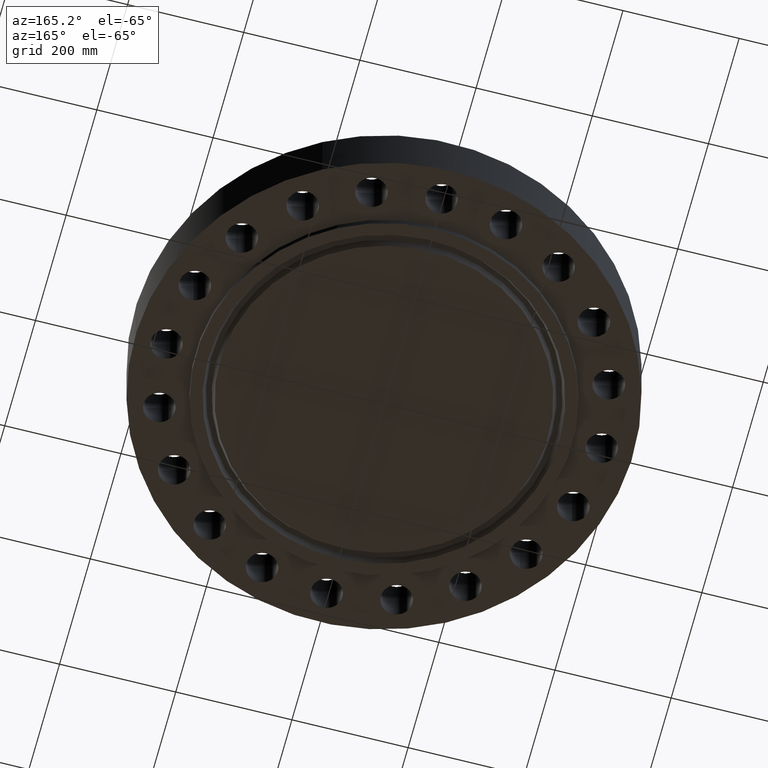
[diagram: clean part render]
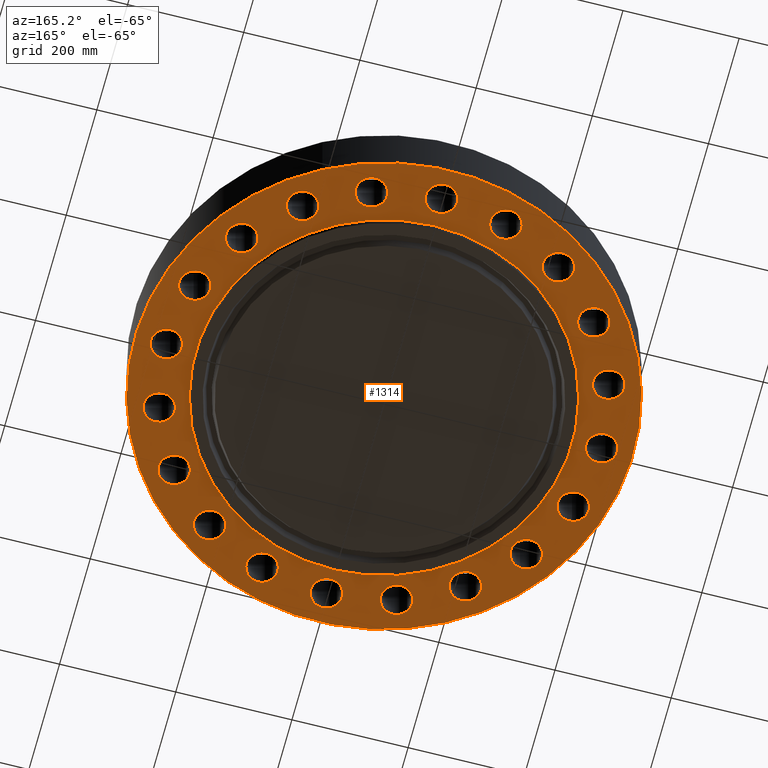
[diagram: same view with one face highlighted and labeled with its STEP entity id]
A machine part, auxiliary view. The second image highlights one B-rep face of the part: STEP entity #1314.
In plain terms, the highlighted planar face has unit normal (0, 0, -1).
Its self-contained STEP definition (entity closure, byte-faithful):
#112=AXIS2_PLACEMENT_3D('Circle Axis2P3D',#110,#111,$) ;
#138=AXIS2_PLACEMENT_3D('Circle Axis2P3D',#136,#137,$) ;
#169=AXIS2_PLACEMENT_3D('Circle Axis2P3D',#167,#168,$) ;
#195=AXIS2_PLACEMENT_3D('Circle Axis2P3D',#193,#194,$) ;
#226=AXIS2_PLACEMENT_3D('Circle Axis2P3D',#224,#225,$) ;
#252=AXIS2_PLACEMENT_3D('Circle Axis2P3D',#250,#251,$) ;
#283=AXIS2_PLACEMENT_3D('Circle Axis2P3D',#281,#282,$) ;
#309=AXIS2_PLACEMENT_3D('Circle Axis2P3D',#307,#308,$) ;
#340=AXIS2_PLACEMENT_3D('Circle Axis2P3D',#338,#339,$) ;
#366=AXIS2_PLACEMENT_3D('Circle Axis2P3D',#364,#365,$) ;
#397=AXIS2_PLACEMENT_3D('Circle Axis2P3D',#395,#396,$) ;
#423=AXIS2_PLACEMENT_3D('Circle Axis2P3D',#421,#422,$) ;
#454=AXIS2_PLACEMENT_3D('Circle Axis2P3D',#452,#453,$) ;
#480=AXIS2_PLACEMENT_3D('Circle Axis2P3D',#478,#479,$) ;
#511=AXIS2_PLACEMENT_3D('Circle Axis2P3D',#509,#510,$) ;
#537=AXIS2_PLACEMENT_3D('Circle Axis2P3D',#535,#536,$) ;
#568=AXIS2_PLACEMENT_3D('Circle Axis2P3D',#566,#567,$) ;
#594=AXIS2_PLACEMENT_3D('Circle Axis2P3D',#592,#593,$) ;
#625=AXIS2_PLACEMENT_3D('Circle Axis2P3D',#623,#624,$) ;
#651=AXIS2_PLACEMENT_3D('Circle Axis2P3D',#649,#650,$) ;
#682=AXIS2_PLACEMENT_3D('Circle Axis2P3D',#680,#681,$) ;
#708=AXIS2_PLACEMENT_3D('Circle Axis2P3D',#706,#707,$) ;
#739=AXIS2_PLACEMENT_3D('Circle Axis2P3D',#737,#738,$) ;
#765=AXIS2_PLACEMENT_3D('Circle Axis2P3D',#763,#764,$) ;
#796=AXIS2_PLACEMENT_3D('Circle Axis2P3D',#794,#795,$) ;
#822=AXIS2_PLACEMENT_3D('Circle Axis2P3D',#820,#821,$) ;
#853=AXIS2_PLACEMENT_3D('Circle Axis2P3D',#851,#852,$) ;
#879=AXIS2_PLACEMENT_3D('Circle Axis2P3D',#877,#878,$) ;
#910=AXIS2_PLACEMENT_3D('Circle Axis2P3D',#908,#909,$) ;
#936=AXIS2_PLACEMENT_3D('Circle Axis2P3D',#934,#935,$) ;
#967=AXIS2_PLACEMENT_3D('Circle Axis2P3D',#965,#966,$) ;
#993=AXIS2_PLACEMENT_3D('Circle Axis2P3D',#991,#992,$) ;
#1024=AXIS2_PLACEMENT_3D('Circle Axis2P3D',#1022,#1023,$) ;
#1050=AXIS2_PLACEMENT_3D('Circle Axis2P3D',#1048,#1049,$) ;
#1081=AXIS2_PLACEMENT_3D('Circle Axis2P3D',#1079,#1080,$) ;
#1107=AXIS2_PLACEMENT_3D('Circle Axis2P3D',#1105,#1106,$) ;
#1138=AXIS2_PLACEMENT_3D('Circle Axis2P3D',#1136,#1137,$) ;
#1164=AXIS2_PLACEMENT_3D('Circle Axis2P3D',#1162,#1163,$) ;
#1182=AXIS2_PLACEMENT_3D('Plane Axis2P3D',#1179,#1180,#1181) ;
#1186=AXIS2_PLACEMENT_3D('Circle Axis2P3D',#1184,#1185,$) ;
#1195=AXIS2_PLACEMENT_3D('Circle Axis2P3D',#1193,#1194,$) ;
#1204=AXIS2_PLACEMENT_3D('Circle Axis2P3D',#1202,#1203,$) ;
#1213=AXIS2_PLACEMENT_3D('Circle Axis2P3D',#1211,#1212,$) ;
#1222=AXIS2_PLACEMENT_3D('Circle Axis2P3D',#1220,#1221,$) ;
#1231=AXIS2_PLACEMENT_3D('Circle Axis2P3D',#1229,#1230,$) ;
#105=CARTESIAN_POINT('Vertex',(5.28910184054,13.2536702412,-5.59482469102E-016)) ;
#110=CARTESIAN_POINT('Axis2P3D Location',(4.55800066705,14.0280836154,0.)) ;
#114=CARTESIAN_POINT('Vertex',(3.82689949356,14.8024969896,0.)) ;
#136=CARTESIAN_POINT('Axis2P3D Location',(4.55800066705,14.0280836154,0.)) ;
#162=CARTESIAN_POINT('Vertex',(-0.934625428417,-14.2394118014,-5.59482469102E-016)) ;
#167=CARTESIAN_POINT('Axis2P3D Location',(8.35666987406E-015,-14.7500000001,0.)) ;
#171=CARTESIAN_POINT('Vertex',(0.934625428417,-15.2605881987,0.)) ;
#193=CARTESIAN_POINT('Axis2P3D Location',(8.35666987406E-015,-14.7500000001,0.)) ;
#219=CARTESIAN_POINT('Vertex',(-3.51133863256,13.8313005227,-3.35689481461E-015)) ;
#224=CARTESIAN_POINT('Axis2P3D Location',(-4.55800066705,14.0280836154,-3.35689481461E-015)) ;
#228=CARTESIAN_POINT('Vertex',(-5.60466270154,14.2248667081,0.)) ;
#250=CARTESIAN_POINT('Axis2P3D Location',(-4.55800066705,14.0280836154,-3.35689481461E-015)) ;
#276=CARTESIAN_POINT('Vertex',(3.51133863256,-13.8313005227,-5.59482469102E-016)) ;
#281=CARTESIAN_POINT('Axis2P3D Location',(4.55800066705,-14.0280836154,0.)) ;
#285=CARTESIAN_POINT('Vertex',(5.60466270154,-14.2248667081,0.)) ;
#307=CARTESIAN_POINT('Axis2P3D Location',(4.55800066705,-14.0280836154,0.)) ;
#333=CARTESIAN_POINT('Vertex',(-7.61358840324,12.0692851805,-5.59482469102E-016)) ;
#338=CARTESIAN_POINT('Axis2P3D Location',(-8.66983247135,11.9330006671,0.)) ;
#342=CARTESIAN_POINT('Vertex',(-9.72607653945,11.7967161536,0.)) ;
#364=CARTESIAN_POINT('Axis2P3D Location',(-8.66983247135,11.9330006671,0.)) ;
#390=CARTESIAN_POINT('Vertex',(7.61358840324,-12.0692851805,-5.59482469102E-016)) ;
#395=CARTESIAN_POINT('Axis2P3D Location',(8.66983247135,-11.9330006671,0.)) ;
#399=CARTESIAN_POINT('Vertex',(9.72607653945,-11.7967161536,0.)) ;
#421=CARTESIAN_POINT('Axis2P3D Location',(8.66983247135,-11.9330006671,0.)) ;
#447=CARTESIAN_POINT('Vertex',(-10.970567094,9.12584411317,-5.59482469102E-016)) ;
#452=CARTESIAN_POINT('Axis2P3D Location',(-11.9330006671,8.66983247135,0.)) ;
#456=CARTESIAN_POINT('Vertex',(-12.8954342401,8.21382082953,0.)) ;
#478=CARTESIAN_POINT('Axis2P3D Location',(-11.9330006671,8.66983247135,0.)) ;
#504=CARTESIAN_POINT('Vertex',(10.970567094,-9.12584411317,-5.59482469102E-016)) ;
#509=CARTESIAN_POINT('Axis2P3D Location',(11.9330006671,-8.66983247135,0.)) ;
#513=CARTESIAN_POINT('Vertex',(12.8954342401,-8.21382082953,0.)) ;
#535=CARTESIAN_POINT('Axis2P3D Location',(11.9330006671,-8.66983247135,0.)) ;
#561=CARTESIAN_POINT('Vertex',(-13.2536702412,5.28910184054,-3.35689481461E-015)) ;
#566=CARTESIAN_POINT('Axis2P3D Location',(-14.0280836154,4.55800066705,-3.35689481461E-015)) ;
#570=CARTESIAN_POINT('Vertex',(-14.8024969896,3.82689949356,0.)) ;
#592=CARTESIAN_POINT('Axis2P3D Location',(-14.0280836154,4.55800066705,-3.35689481461E-015)) ;
#618=CARTESIAN_POINT('Vertex',(13.2536702412,-5.28910184054,-5.59482469102E-016)) ;
#623=CARTESIAN_POINT('Axis2P3D Location',(14.0280836154,-4.55800066705,0.)) ;
#627=CARTESIAN_POINT('Vertex',(14.8024969896,-3.82689949356,0.)) ;
#649=CARTESIAN_POINT('Axis2P3D Location',(14.0280836154,-4.55800066705,0.)) ;
#675=CARTESIAN_POINT('Vertex',(-14.2394118014,0.934625428417,-5.59482469102E-016)) ;
#680=CARTESIAN_POINT('Axis2P3D Location',(-14.7500000001,-1.58101627338E-014,0.)) ;
#684=CARTESIAN_POINT('Vertex',(-15.2605881987,-0.934625428417,0.)) ;
#706=CARTESIAN_POINT('Axis2P3D Location',(-14.7500000001,-1.58101627338E-014,0.)) ;
#732=CARTESIAN_POINT('Vertex',(14.2394118014,-0.934625428417,-5.59482469102E-016)) ;
#737=CARTESIAN_POINT('Axis2P3D Location',(14.7500000001,4.17833493703E-015,0.)) ;
#741=CARTESIAN_POINT('Vertex',(15.2605881987,0.934625428417,0.)) ;
#763=CARTESIAN_POINT('Axis2P3D Location',(14.7500000001,4.17833493703E-015,0.)) ;
#789=CARTESIAN_POINT('Vertex',(-13.8313005227,-3.51133863256,-3.35689481461E-015)) ;
#794=CARTESIAN_POINT('Axis2P3D Location',(-14.0280836154,-4.55800066705,-3.35689481461E-015)) ;
#798=CARTESIAN_POINT('Vertex',(-14.2248667081,-5.60466270154,0.)) ;
#820=CARTESIAN_POINT('Axis2P3D Location',(-14.0280836154,-4.55800066705,-3.35689481461E-015)) ;
#846=CARTESIAN_POINT('Vertex',(13.8313005227,3.51133863256,-5.59482469102E-016)) ;
#851=CARTESIAN_POINT('Axis2P3D Location',(14.0280836154,4.55800066705,0.)) ;
#855=CARTESIAN_POINT('Vertex',(14.2248667081,5.60466270154,0.)) ;
#877=CARTESIAN_POINT('Axis2P3D Location',(14.0280836154,4.55800066705,0.)) ;
#903=CARTESIAN_POINT('Vertex',(-12.0692851805,-7.61358840324,-5.59482469102E-016)) ;
#908=CARTESIAN_POINT('Axis2P3D Location',(-11.9330006671,-8.66983247135,0.)) ;
#912=CARTESIAN_POINT('Vertex',(-11.7967161536,-9.72607653945,0.)) ;
#934=CARTESIAN_POINT('Axis2P3D Location',(-11.9330006671,-8.66983247135,0.)) ;
#960=CARTESIAN_POINT('Vertex',(12.0692851805,7.61358840324,-5.59482469102E-016)) ;
#965=CARTESIAN_POINT('Axis2P3D Location',(11.9330006671,8.66983247135,0.)) ;
#969=CARTESIAN_POINT('Vertex',(11.7967161536,9.72607653945,0.)) ;
#991=CARTESIAN_POINT('Axis2P3D Location',(11.9330006671,8.66983247135,0.)) ;
#1017=CARTESIAN_POINT('Vertex',(-9.12584411317,-10.970567094,-3.35689481461E-015)) ;
#1022=CARTESIAN_POINT('Axis2P3D Location',(-8.66983247135,-11.9330006671,-3.35689481461E-015)) ;
#1026=CARTESIAN_POINT('Vertex',(-8.21382082953,-12.8954342401,0.)) ;
#1048=CARTESIAN_POINT('Axis2P3D Location',(-8.66983247135,-11.9330006671,-3.35689481461E-015)) ;
#1074=CARTESIAN_POINT('Vertex',(9.12584411317,10.970567094,-3.35689481461E-015)) ;
#1079=CARTESIAN_POINT('Axis2P3D Location',(8.66983247135,11.9330006671,-3.35689481461E-015)) ;
#1083=CARTESIAN_POINT('Vertex',(8.21382082953,12.8954342401,0.)) ;
#1105=CARTESIAN_POINT('Axis2P3D Location',(8.66983247135,11.9330006671,-3.35689481461E-015)) ;
#1131=CARTESIAN_POINT('Vertex',(-5.28910184054,-13.2536702412,-5.59482469102E-016)) ;
#1136=CARTESIAN_POINT('Axis2P3D Location',(-4.55800066705,-14.0280836154,0.)) ;
#1140=CARTESIAN_POINT('Vertex',(-3.82689949356,-14.8024969896,0.)) ;
#1162=CARTESIAN_POINT('Axis2P3D Location',(-4.55800066705,-14.0280836154,0.)) ;
#1179=CARTESIAN_POINT('Axis2P3D Location',(0.,12.7500000001,0.)) ;
#1184=CARTESIAN_POINT('Axis2P3D Location',(0.,0.,0.)) ;
#1188=CARTESIAN_POINT('Vertex',(-8.09030596398,-14.809205732,1.95818864186E-015)) ;
#1190=CARTESIAN_POINT('Vertex',(8.09030596398,14.809205732,1.95818864186E-015)) ;
#1193=CARTESIAN_POINT('Axis2P3D Location',(0.,0.,0.)) ;
#1202=CARTESIAN_POINT('Axis2P3D Location',(-3.84644197508E-016,14.7500000001,0.)) ;
#1206=CARTESIAN_POINT('Vertex',(0.934625428417,14.2394118014,-5.59482469102E-016)) ;
#1208=CARTESIAN_POINT('Vertex',(-0.934625428417,15.2605881987,-5.59482469102E-016)) ;
#1211=CARTESIAN_POINT('Axis2P3D Location',(4.19611851827E-016,14.7500000001,0.)) ;
#1220=CARTESIAN_POINT('Axis2P3D Location',(0.,0.,0.)) ;
#1224=CARTESIAN_POINT('Vertex',(6.11267561723,11.1891776641,1.39870617276E-015)) ;
#1226=CARTESIAN_POINT('Vertex',(-6.11267561723,-11.1891776641,1.39870617276E-015)) ;
#1229=CARTESIAN_POINT('Axis2P3D Location',(0.,0.,0.)) ;
#111=DIRECTION('Axis2P3D Direction',(0.,-0.,-0.0393700787402)) ;
#137=DIRECTION('Axis2P3D Direction',(0.,-0.,-0.0393700787402)) ;
#168=DIRECTION('Axis2P3D Direction',(-0.,0.,-0.0393700787402)) ;
#194=DIRECTION('Axis2P3D Direction',(-0.,0.,-0.0393700787402)) ;
#225=DIRECTION('Axis2P3D Direction',(0.,0.,-0.0393700787402)) ;
#251=DIRECTION('Axis2P3D Direction',(0.,0.,-0.0393700787402)) ;
#282=DIRECTION('Axis2P3D Direction',(-0.,0.,-0.0393700787402)) ;
#308=DIRECTION('Axis2P3D Direction',(-0.,0.,-0.0393700787402)) ;
#339=DIRECTION('Axis2P3D Direction',(0.,0.,-0.0393700787402)) ;
#365=DIRECTION('Axis2P3D Direction',(0.,0.,-0.0393700787402)) ;
#396=DIRECTION('Axis2P3D Direction',(-0.,0.,-0.0393700787402)) ;
#422=DIRECTION('Axis2P3D Direction',(-0.,0.,-0.0393700787402)) ;
#453=DIRECTION('Axis2P3D Direction',(0.,0.,-0.0393700787402)) ;
#479=DIRECTION('Axis2P3D Direction',(0.,0.,-0.0393700787402)) ;
#510=DIRECTION('Axis2P3D Direction',(-0.,0.,-0.0393700787402)) ;
#536=DIRECTION('Axis2P3D Direction',(-0.,0.,-0.0393700787402)) ;
#567=DIRECTION('Axis2P3D Direction',(0.,0.,-0.0393700787402)) ;
#593=DIRECTION('Axis2P3D Direction',(0.,0.,-0.0393700787402)) ;
#624=DIRECTION('Axis2P3D Direction',(-0.,0.,-0.0393700787402)) ;
#650=DIRECTION('Axis2P3D Direction',(-0.,0.,-0.0393700787402)) ;
#681=DIRECTION('Axis2P3D Direction',(0.,0.,-0.0393700787402)) ;
#707=DIRECTION('Axis2P3D Direction',(0.,0.,-0.0393700787402)) ;
#738=DIRECTION('Axis2P3D Direction',(0.,-0.,-0.0393700787402)) ;
#764=DIRECTION('Axis2P3D Direction',(0.,-0.,-0.0393700787402)) ;
#795=DIRECTION('Axis2P3D Direction',(0.,0.,-0.0393700787402)) ;
#821=DIRECTION('Axis2P3D Direction',(0.,0.,-0.0393700787402)) ;
#852=DIRECTION('Axis2P3D Direction',(0.,-0.,-0.0393700787402)) ;
#878=DIRECTION('Axis2P3D Direction',(0.,-0.,-0.0393700787402)) ;
#909=DIRECTION('Axis2P3D Direction',(0.,0.,-0.0393700787402)) ;
#935=DIRECTION('Axis2P3D Direction',(0.,0.,-0.0393700787402)) ;
#966=DIRECTION('Axis2P3D Direction',(0.,-0.,-0.0393700787402)) ;
#992=DIRECTION('Axis2P3D Direction',(0.,-0.,-0.0393700787402)) ;
#1023=DIRECTION('Axis2P3D Direction',(0.,0.,-0.0393700787402)) ;
#1049=DIRECTION('Axis2P3D Direction',(0.,0.,-0.0393700787402)) ;
#1080=DIRECTION('Axis2P3D Direction',(0.,-0.,-0.0393700787402)) ;
#1106=DIRECTION('Axis2P3D Direction',(0.,-0.,-0.0393700787402)) ;
#1137=DIRECTION('Axis2P3D Direction',(0.,0.,-0.0393700787402)) ;
#1163=DIRECTION('Axis2P3D Direction',(0.,0.,-0.0393700787402)) ;
#1180=DIRECTION('Axis2P3D Direction',(0.,0.,-0.0393700787402)) ;
#1181=DIRECTION('Axis2P3D XDirection',(0.0393700787402,0.,0.)) ;
#1185=DIRECTION('Axis2P3D Direction',(0.,0.,-0.0393700787402)) ;
#1194=DIRECTION('Axis2P3D Direction',(0.,0.,-0.0393700787402)) ;
#1203=DIRECTION('Axis2P3D Direction',(0.,0.,-0.0393700787402)) ;
#1212=DIRECTION('Axis2P3D Direction',(0.,0.,-0.0393700787402)) ;
#1221=DIRECTION('Axis2P3D Direction',(0.,0.,-0.0393700787402)) ;
#1230=DIRECTION('Axis2P3D Direction',(0.,0.,-0.0393700787402)) ;
#1199=ORIENTED_EDGE('',*,*,#1192,.T.) ;
#1200=ORIENTED_EDGE('',*,*,#1197,.T.) ;
#1217=ORIENTED_EDGE('',*,*,#1210,.F.) ;
#1218=ORIENTED_EDGE('',*,*,#1215,.F.) ;
#1235=ORIENTED_EDGE('',*,*,#1228,.F.) ;
#1236=ORIENTED_EDGE('',*,*,#1233,.F.) ;
#1239=ORIENTED_EDGE('',*,*,#140,.F.) ;
#1240=ORIENTED_EDGE('',*,*,#116,.F.) ;
#1243=ORIENTED_EDGE('',*,*,#1109,.F.) ;
#1244=ORIENTED_EDGE('',*,*,#1085,.F.) ;
#1247=ORIENTED_EDGE('',*,*,#995,.F.) ;
#1248=ORIENTED_EDGE('',*,*,#971,.F.) ;
#1251=ORIENTED_EDGE('',*,*,#881,.F.) ;
#1252=ORIENTED_EDGE('',*,*,#857,.F.) ;
#1255=ORIENTED_EDGE('',*,*,#767,.F.) ;
#1256=ORIENTED_EDGE('',*,*,#743,.F.) ;
#1259=ORIENTED_EDGE('',*,*,#653,.F.) ;
#1260=ORIENTED_EDGE('',*,*,#629,.F.) ;
#1263=ORIENTED_EDGE('',*,*,#539,.F.) ;
#1264=ORIENTED_EDGE('',*,*,#515,.F.) ;
#1267=ORIENTED_EDGE('',*,*,#425,.F.) ;
#1268=ORIENTED_EDGE('',*,*,#401,.F.) ;
#1271=ORIENTED_EDGE('',*,*,#311,.F.) ;
#1272=ORIENTED_EDGE('',*,*,#287,.F.) ;
#1275=ORIENTED_EDGE('',*,*,#197,.F.) ;
#1276=ORIENTED_EDGE('',*,*,#173,.F.) ;
#1279=ORIENTED_EDGE('',*,*,#1166,.F.) ;
#1280=ORIENTED_EDGE('',*,*,#1142,.F.) ;
#1283=ORIENTED_EDGE('',*,*,#1052,.F.) ;
#1284=ORIENTED_EDGE('',*,*,#1028,.F.) ;
#1287=ORIENTED_EDGE('',*,*,#938,.F.) ;
#1288=ORIENTED_EDGE('',*,*,#914,.F.) ;
#1291=ORIENTED_EDGE('',*,*,#824,.F.) ;
#1292=ORIENTED_EDGE('',*,*,#800,.F.) ;
#1295=ORIENTED_EDGE('',*,*,#710,.F.) ;
#1296=ORIENTED_EDGE('',*,*,#686,.F.) ;
#1299=ORIENTED_EDGE('',*,*,#596,.F.) ;
#1300=ORIENTED_EDGE('',*,*,#572,.F.) ;
#1303=ORIENTED_EDGE('',*,*,#482,.F.) ;
#1304=ORIENTED_EDGE('',*,*,#458,.F.) ;
#1307=ORIENTED_EDGE('',*,*,#368,.F.) ;
#1308=ORIENTED_EDGE('',*,*,#344,.F.) ;
#1311=ORIENTED_EDGE('',*,*,#254,.F.) ;
#1312=ORIENTED_EDGE('',*,*,#230,.F.) ;
#1219=FACE_BOUND('',#1216,.T.) ;
#1237=FACE_BOUND('',#1234,.T.) ;
#1241=FACE_BOUND('',#1238,.T.) ;
#1245=FACE_BOUND('',#1242,.T.) ;
#1249=FACE_BOUND('',#1246,.T.) ;
#1253=FACE_BOUND('',#1250,.T.) ;
#1257=FACE_BOUND('',#1254,.T.) ;
#1261=FACE_BOUND('',#1258,.T.) ;
#1265=FACE_BOUND('',#1262,.T.) ;
#1269=FACE_BOUND('',#1266,.T.) ;
#1273=FACE_BOUND('',#1270,.T.) ;
#1277=FACE_BOUND('',#1274,.T.) ;
#1281=FACE_BOUND('',#1278,.T.) ;
#1285=FACE_BOUND('',#1282,.T.) ;
#1289=FACE_BOUND('',#1286,.T.) ;
#1293=FACE_BOUND('',#1290,.T.) ;
#1297=FACE_BOUND('',#1294,.T.) ;
#1301=FACE_BOUND('',#1298,.T.) ;
#1305=FACE_BOUND('',#1302,.T.) ;
#1309=FACE_BOUND('',#1306,.T.) ;
#1313=FACE_BOUND('',#1310,.T.) ;
#1314=ADVANCED_FACE('PartBody',(#1201,#1219,#1237,#1241,#1245,#1249,#1253,#1257,#1261,#1265,#1269,#1273,#1277,#1281,#1285,#1289,#1293,#1297,#1301,#1305,#1309,#1313),#1183,.T.) ;
#113=CIRCLE('generated circle',#112,1.065) ;
#139=CIRCLE('generated circle',#138,1.065) ;
#170=CIRCLE('generated circle',#169,1.065) ;
#196=CIRCLE('generated circle',#195,1.065) ;
#227=CIRCLE('generated circle',#226,1.065) ;
#253=CIRCLE('generated circle',#252,1.065) ;
#284=CIRCLE('generated circle',#283,1.065) ;
#310=CIRCLE('generated circle',#309,1.065) ;
#341=CIRCLE('generated circle',#340,1.065) ;
#367=CIRCLE('generated circle',#366,1.065) ;
#398=CIRCLE('generated circle',#397,1.065) ;
#424=CIRCLE('generated circle',#423,1.065) ;
#455=CIRCLE('generated circle',#454,1.065) ;
#481=CIRCLE('generated circle',#480,1.065) ;
#512=CIRCLE('generated circle',#511,1.065) ;
#538=CIRCLE('generated circle',#537,1.065) ;
#569=CIRCLE('generated circle',#568,1.065) ;
#595=CIRCLE('generated circle',#594,1.065) ;
#626=CIRCLE('generated circle',#625,1.065) ;
#652=CIRCLE('generated circle',#651,1.065) ;
#683=CIRCLE('generated circle',#682,1.065) ;
#709=CIRCLE('generated circle',#708,1.065) ;
#740=CIRCLE('generated circle',#739,1.065) ;
#766=CIRCLE('generated circle',#765,1.065) ;
#797=CIRCLE('generated circle',#796,1.065) ;
#823=CIRCLE('generated circle',#822,1.065) ;
#854=CIRCLE('generated circle',#853,1.065) ;
#880=CIRCLE('generated circle',#879,1.065) ;
#911=CIRCLE('generated circle',#910,1.065) ;
#937=CIRCLE('generated circle',#936,1.065) ;
#968=CIRCLE('generated circle',#967,1.065) ;
#994=CIRCLE('generated circle',#993,1.065) ;
#1025=CIRCLE('generated circle',#1024,1.065) ;
#1051=CIRCLE('generated circle',#1050,1.065) ;
#1082=CIRCLE('generated circle',#1081,1.065) ;
#1108=CIRCLE('generated circle',#1107,1.065) ;
#1139=CIRCLE('generated circle',#1138,1.065) ;
#1165=CIRCLE('generated circle',#1164,1.065) ;
#1187=CIRCLE('generated circle',#1186,16.8750000001) ;
#1196=CIRCLE('generated circle',#1195,16.8750000001) ;
#1205=CIRCLE('generated circle',#1204,1.065) ;
#1214=CIRCLE('generated circle',#1213,1.065) ;
#1223=CIRCLE('generated circle',#1222,12.7500000001) ;
#1232=CIRCLE('generated circle',#1231,12.7500000001) ;
#116=EDGE_CURVE('',#106,#115,#113,.T.) ;
#140=EDGE_CURVE('',#115,#106,#139,.T.) ;
#173=EDGE_CURVE('',#163,#172,#170,.T.) ;
#197=EDGE_CURVE('',#172,#163,#196,.T.) ;
#230=EDGE_CURVE('',#220,#229,#227,.T.) ;
#254=EDGE_CURVE('',#229,#220,#253,.T.) ;
#287=EDGE_CURVE('',#277,#286,#284,.T.) ;
#311=EDGE_CURVE('',#286,#277,#310,.T.) ;
#344=EDGE_CURVE('',#334,#343,#341,.T.) ;
#368=EDGE_CURVE('',#343,#334,#367,.T.) ;
#401=EDGE_CURVE('',#391,#400,#398,.T.) ;
#425=EDGE_CURVE('',#400,#391,#424,.T.) ;
#458=EDGE_CURVE('',#448,#457,#455,.T.) ;
#482=EDGE_CURVE('',#457,#448,#481,.T.) ;
#515=EDGE_CURVE('',#505,#514,#512,.T.) ;
#539=EDGE_CURVE('',#514,#505,#538,.T.) ;
#572=EDGE_CURVE('',#562,#571,#569,.T.) ;
#596=EDGE_CURVE('',#571,#562,#595,.T.) ;
#629=EDGE_CURVE('',#619,#628,#626,.T.) ;
#653=EDGE_CURVE('',#628,#619,#652,.T.) ;
#686=EDGE_CURVE('',#676,#685,#683,.T.) ;
#710=EDGE_CURVE('',#685,#676,#709,.T.) ;
#743=EDGE_CURVE('',#733,#742,#740,.T.) ;
#767=EDGE_CURVE('',#742,#733,#766,.T.) ;
#800=EDGE_CURVE('',#790,#799,#797,.T.) ;
#824=EDGE_CURVE('',#799,#790,#823,.T.) ;
#857=EDGE_CURVE('',#847,#856,#854,.T.) ;
#881=EDGE_CURVE('',#856,#847,#880,.T.) ;
#914=EDGE_CURVE('',#904,#913,#911,.T.) ;
#938=EDGE_CURVE('',#913,#904,#937,.T.) ;
#971=EDGE_CURVE('',#961,#970,#968,.T.) ;
#995=EDGE_CURVE('',#970,#961,#994,.T.) ;
#1028=EDGE_CURVE('',#1018,#1027,#1025,.T.) ;
#1052=EDGE_CURVE('',#1027,#1018,#1051,.T.) ;
#1085=EDGE_CURVE('',#1075,#1084,#1082,.T.) ;
#1109=EDGE_CURVE('',#1084,#1075,#1108,.T.) ;
#1142=EDGE_CURVE('',#1132,#1141,#1139,.T.) ;
#1166=EDGE_CURVE('',#1141,#1132,#1165,.T.) ;
#1192=EDGE_CURVE('',#1189,#1191,#1187,.T.) ;
#1197=EDGE_CURVE('',#1191,#1189,#1196,.T.) ;
#1210=EDGE_CURVE('',#1207,#1209,#1205,.T.) ;
#1215=EDGE_CURVE('',#1209,#1207,#1214,.T.) ;
#1228=EDGE_CURVE('',#1225,#1227,#1223,.T.) ;
#1233=EDGE_CURVE('',#1227,#1225,#1232,.T.) ;
#1198=EDGE_LOOP('',(#1199,#1200)) ;
#1216=EDGE_LOOP('',(#1217,#1218)) ;
#1234=EDGE_LOOP('',(#1235,#1236)) ;
#1238=EDGE_LOOP('',(#1239,#1240)) ;
#1242=EDGE_LOOP('',(#1243,#1244)) ;
#1246=EDGE_LOOP('',(#1247,#1248)) ;
#1250=EDGE_LOOP('',(#1251,#1252)) ;
#1254=EDGE_LOOP('',(#1255,#1256)) ;
#1258=EDGE_LOOP('',(#1259,#1260)) ;
#1262=EDGE_LOOP('',(#1263,#1264)) ;
#1266=EDGE_LOOP('',(#1267,#1268)) ;
#1270=EDGE_LOOP('',(#1271,#1272)) ;
#1274=EDGE_LOOP('',(#1275,#1276)) ;
#1278=EDGE_LOOP('',(#1279,#1280)) ;
#1282=EDGE_LOOP('',(#1283,#1284)) ;
#1286=EDGE_LOOP('',(#1287,#1288)) ;
#1290=EDGE_LOOP('',(#1291,#1292)) ;
#1294=EDGE_LOOP('',(#1295,#1296)) ;
#1298=EDGE_LOOP('',(#1299,#1300)) ;
#1302=EDGE_LOOP('',(#1303,#1304)) ;
#1306=EDGE_LOOP('',(#1307,#1308)) ;
#1310=EDGE_LOOP('',(#1311,#1312)) ;
#1201=FACE_OUTER_BOUND('',#1198,.T.) ;
#1183=PLANE('',#1182) ;
#106=VERTEX_POINT('',#105) ;
#115=VERTEX_POINT('',#114) ;
#163=VERTEX_POINT('',#162) ;
#172=VERTEX_POINT('',#171) ;
#220=VERTEX_POINT('',#219) ;
#229=VERTEX_POINT('',#228) ;
#277=VERTEX_POINT('',#276) ;
#286=VERTEX_POINT('',#285) ;
#334=VERTEX_POINT('',#333) ;
#343=VERTEX_POINT('',#342) ;
#391=VERTEX_POINT('',#390) ;
#400=VERTEX_POINT('',#399) ;
#448=VERTEX_POINT('',#447) ;
#457=VERTEX_POINT('',#456) ;
#505=VERTEX_POINT('',#504) ;
#514=VERTEX_POINT('',#513) ;
#562=VERTEX_POINT('',#561) ;
#571=VERTEX_POINT('',#570) ;
#619=VERTEX_POINT('',#618) ;
#628=VERTEX_POINT('',#627) ;
#676=VERTEX_POINT('',#675) ;
#685=VERTEX_POINT('',#684) ;
#733=VERTEX_POINT('',#732) ;
#742=VERTEX_POINT('',#741) ;
#790=VERTEX_POINT('',#789) ;
#799=VERTEX_POINT('',#798) ;
#847=VERTEX_POINT('',#846) ;
#856=VERTEX_POINT('',#855) ;
#904=VERTEX_POINT('',#903) ;
#913=VERTEX_POINT('',#912) ;
#961=VERTEX_POINT('',#960) ;
#970=VERTEX_POINT('',#969) ;
#1018=VERTEX_POINT('',#1017) ;
#1027=VERTEX_POINT('',#1026) ;
#1075=VERTEX_POINT('',#1074) ;
#1084=VERTEX_POINT('',#1083) ;
#1132=VERTEX_POINT('',#1131) ;
#1141=VERTEX_POINT('',#1140) ;
#1189=VERTEX_POINT('',#1188) ;
#1191=VERTEX_POINT('',#1190) ;
#1207=VERTEX_POINT('',#1206) ;
#1209=VERTEX_POINT('',#1208) ;
#1225=VERTEX_POINT('',#1224) ;
#1227=VERTEX_POINT('',#1226) ;